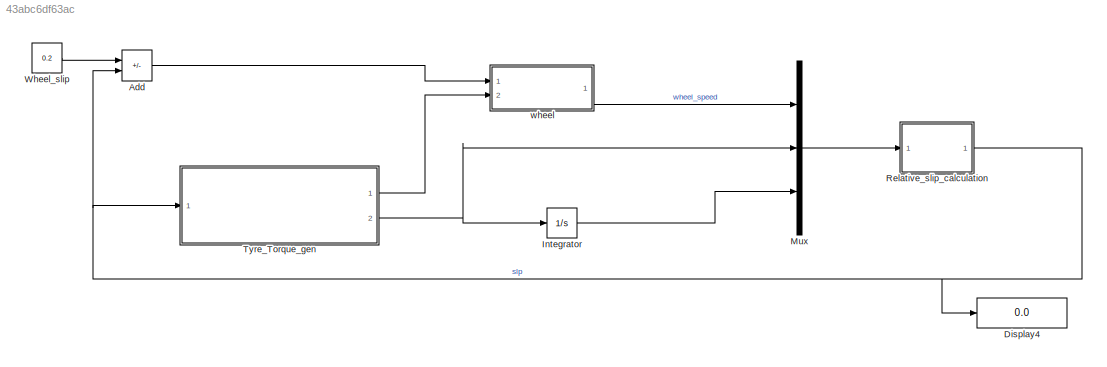
MODEL slx_43abc6df63ac
KIND model
CONFIG AbsTol = auto
CONFIG EnableMultiTasking = off
CONFIG FixedStep = auto
CONFIG InitFcn = g=9.8100;\nI=5;\nm=75;\nR=1.2500;\nv0=44;\nmu=[0 0.4 0.8 0.97 1 0.98 0.96 0.94 0.92 0.9 0.88 0.855 0.83 0.81 0.79 0.77 0.75 0.73 0.72 0.71 0.7];\nslip=[0 0.05 0.1 0.15 0.2 0.25 0.3 0.35 0.4 0.45 0.5 0.55 0.6 0.65 0.7 0.75 0.8 0.85 0.9 0.95 1];
CONFIG MaxStep = auto
CONFIG MinStep = auto
CONFIG RelTol = 1e-3
CONFIG SampleTimeConstraint = Unconstrained
CONFIG Solver = ode45
CONFIG SolverName = ode45
CONFIG StartTime = 0.0
CONFIG StopTime = 25.0
BLOCK [Sum] Add
  IconShape = rectangular
  Inputs = +-
  Ports = [2, 1]
BLOCK [Display] Display4
  Decimation = 1
  Ports = [1]
BLOCK [Integrator] Integrator
  Ports = [1, 1]
BLOCK [Mux] Mux
  DisplayOption = bar
  Inputs = 3
  Ports = [3, 1]
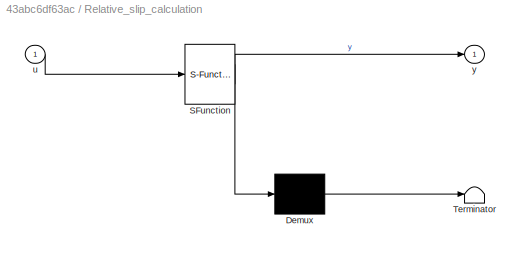
BLOCK [SubSystem] Relative_slip_calculation
  ErrorFcn = Stateflow.Translate.translate
  PermitHierarchicalResolution = ExplicitOnly
  Ports = [1, 1]
  RequestExecContextInheritance = off
  SFBlockType = MATLAB Function
  TreatAsAtomicUnit = on
BLOCK [Demux] Relative_slip_calculation/ Demux 
  Outputs = 1
  Ports = [1, 1]
BLOCK [S-Function] Relative_slip_calculation/ SFunction 
  EnableBusSupport = on
  FunctionName = sf_sfun
  PortCounts = [1 2]
  Ports = [1, 2]
  SFcnIsStateOwnerBlock = off
  SFunctionDeploymentMode = off
  Tag = Stateflow S-Function 2
BLOCK [Terminator] Relative_slip_calculation/ Terminator 
BLOCK [Inport] Relative_slip_calculation/u
BLOCK [Outport] Relative_slip_calculation/y
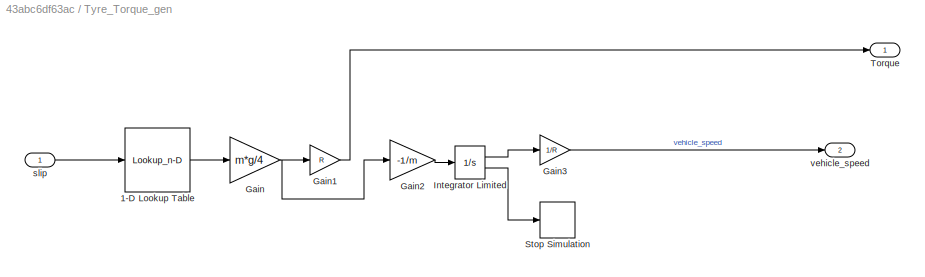
BLOCK [SubSystem] Tyre_Torque_gen
  Ports = [1, 2]
  RequestExecContextInheritance = off
BLOCK [Lookup_n-D] Tyre_Torque_gen/1-D Lookup Table
  BreakpointsForDimension1 = slip
  InternalRulePriority = Speed
  NumberOfTableDimensions = 1
  Ports = [1, 1]
  RndMeth = Simplest
  Table = mu
BLOCK [Gain] Tyre_Torque_gen/Gain
  Gain = m*g/4
BLOCK [Gain] Tyre_Torque_gen/Gain1
  Gain = R
BLOCK [Gain] Tyre_Torque_gen/Gain2
  Gain = -1/m
BLOCK [Gain] Tyre_Torque_gen/Gain3
  Gain = 1/R
BLOCK [Integrator] Tyre_Torque_gen/Integrator Limited
  InitialCondition = v0
  LimitOutput = on
  LowerSaturationLimit = 0
  Ports = [1, 2]
  ShowSaturationPort = on
  UpperSaturationLimit = 1000
BLOCK [Stop] Tyre_Torque_gen/Stop Simulation
BLOCK [Outport] Tyre_Torque_gen/Torque
BLOCK [Inport] Tyre_Torque_gen/slip
BLOCK [Outport] Tyre_Torque_gen/vehicle_speed
  Port = 2
BLOCK [Constant] Wheel_slip
  Value = 0.2
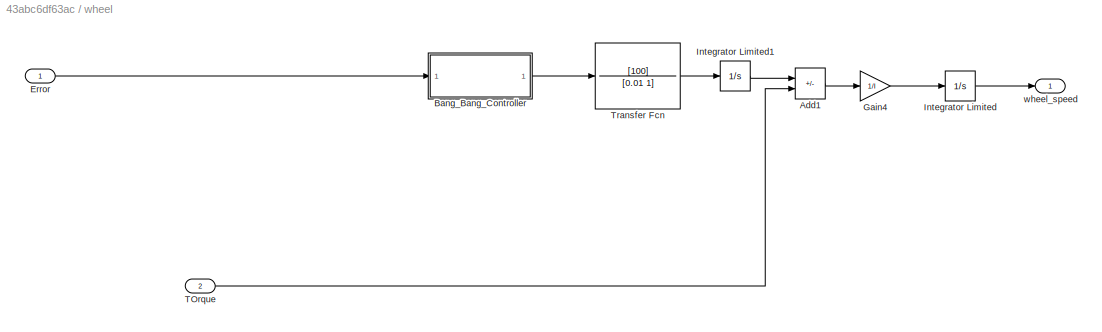
BLOCK [SubSystem] wheel
  Ports = [2, 1]
  RequestExecContextInheritance = off
  TreatAsAtomicUnit = on
BLOCK [Sum] wheel/Add1
  IconShape = rectangular
  Inputs = -+
  Ports = [2, 1]
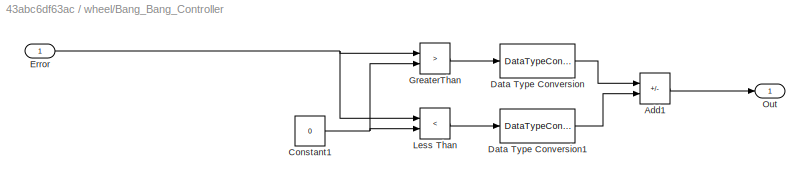
BLOCK [SubSystem] wheel/Bang_Bang_Controller
  Ports = [1, 1]
  RequestExecContextInheritance = off
  TreatAsAtomicUnit = on
BLOCK [Sum] wheel/Bang_Bang_Controller/Add1
  IconShape = rectangular
  Inputs = +-
  Ports = [2, 1]
BLOCK [Constant] wheel/Bang_Bang_Controller/Constant1
  Value = 0
BLOCK [DataTypeConversion] wheel/Bang_Bang_Controller/Data Type Conversion
  OutDataTypeStr = double
  RndMeth = Floor
  SaturateOnIntegerOverflow = off
BLOCK [DataTypeConversion] wheel/Bang_Bang_Controller/Data Type Conversion1
  OutDataTypeStr = double
  RndMeth = Floor
  SaturateOnIntegerOverflow = off
BLOCK [Inport] wheel/Bang_Bang_Controller/Error
BLOCK [RelationalOperator] wheel/Bang_Bang_Controller/GreaterThan
  InputSameDT = off
  Operator = >
  OutDataTypeStr = boolean
  Ports = [2, 1]
  RndMeth = Simplest
BLOCK [RelationalOperator] wheel/Bang_Bang_Controller/Less Than
  InputSameDT = off
  Operator = <
  OutDataTypeStr = boolean
  Ports = [2, 1]
  RndMeth = Simplest
BLOCK [Outport] wheel/Bang_Bang_Controller/Out
BLOCK [Inport] wheel/Error
BLOCK [Gain] wheel/Gain4
  Gain = 1/I
BLOCK [Integrator] wheel/Integrator Limited
  InitialCondition = v0/R
  LimitOutput = on
  LowerSaturationLimit = 0
  Ports = [1, 1]
  UpperSaturationLimit = 1000
BLOCK [Integrator] wheel/Integrator Limited1
  InitialCondition = v0
  LimitOutput = on
  LowerSaturationLimit = 0
  Ports = [1, 1]
  UpperSaturationLimit = 1000
BLOCK [Inport] wheel/TOrque
  Port = 2
BLOCK [TransferFcn] wheel/Transfer Fcn
  Denominator = [0.01 1]
  Numerator = [100]
BLOCK [Outport] wheel/wheel_speed
LINE Add:1 -> wheel:1
LINE Integrator:1 -> Mux:3
LINE Mux:1 -> Relative_slip_calculation:1
NET Relative_slip_calculation:1 -> Add:2, Display4:1, Tyre_Torque_gen:1
LINE Tyre_Torque_gen/1-D Lookup Table:1 -> Tyre_Torque_gen/Gain:1
LINE Tyre_Torque_gen/Gain1:1 -> Tyre_Torque_gen/Torque:1
LINE Tyre_Torque_gen/Gain2:1 -> Tyre_Torque_gen/Integrator Limited:1
LINE Tyre_Torque_gen/Gain3:1 -> Tyre_Torque_gen/vehicle_speed:1
NET Tyre_Torque_gen/Gain:1 -> Tyre_Torque_gen/Gain1:1, Tyre_Torque_gen/Gain2:1
LINE Tyre_Torque_gen/Integrator Limited:1 -> Tyre_Torque_gen/Gain3:1
LINE Tyre_Torque_gen/Integrator Limited:2 -> Tyre_Torque_gen/Stop Simulation:1
LINE Tyre_Torque_gen/slip:1 -> Tyre_Torque_gen/1-D Lookup Table:1
LINE Tyre_Torque_gen:1 -> wheel:2
NET Tyre_Torque_gen:2 -> Integrator:1, Mux:2
LINE Wheel_slip:1 -> Add:1
LINE wheel/Add1:1 -> wheel/Gain4:1
LINE wheel/Bang_Bang_Controller/Add1:1 -> wheel/Bang_Bang_Controller/Out:1
NET wheel/Bang_Bang_Controller/Constant1:1 -> wheel/Bang_Bang_Controller/GreaterThan:2, wheel/Bang_Bang_Controller/Less Than:2
LINE wheel/Bang_Bang_Controller/Data Type Conversion1:1 -> wheel/Bang_Bang_Controller/Add1:2
LINE wheel/Bang_Bang_Controller/Data Type Conversion:1 -> wheel/Bang_Bang_Controller/Add1:1
NET wheel/Bang_Bang_Controller/Error:1 -> wheel/Bang_Bang_Controller/GreaterThan:1, wheel/Bang_Bang_Controller/Less Than:1
LINE wheel/Bang_Bang_Controller/GreaterThan:1 -> wheel/Bang_Bang_Controller/Data Type Conversion:1
LINE wheel/Bang_Bang_Controller/Less Than:1 -> wheel/Bang_Bang_Controller/Data Type Conversion1:1
LINE wheel/Bang_Bang_Controller:1 -> wheel/Transfer Fcn:1
LINE wheel/Error:1 -> wheel/Bang_Bang_Controller:1
LINE wheel/Gain4:1 -> wheel/Integrator Limited:1
LINE wheel/Integrator Limited1:1 -> wheel/Add1:1
LINE wheel/Integrator Limited:1 -> wheel/wheel_speed:1
LINE wheel/TOrque:1 -> wheel/Add1:2
LINE wheel/Transfer Fcn:1 -> wheel/Integrator Limited1:1
LINE wheel:1 -> Mux:1
note: NET lines group one-source signal fan-out (src -> all destinations, sorted); 1:1 wires keep LINE
CHART Relative_slip_calculation states=1 transitions=1
  STATE_LABEL 'eML_blk_kernel()'
  STATE_LABEL 'SCRIPT:\nfunction y = fcn(u)\nz = (u(2)==0)*eps;\nx = u(2) + z;\ny = 1.0 - u(1)/x;\n'
CHART  states=0 transitions=0
